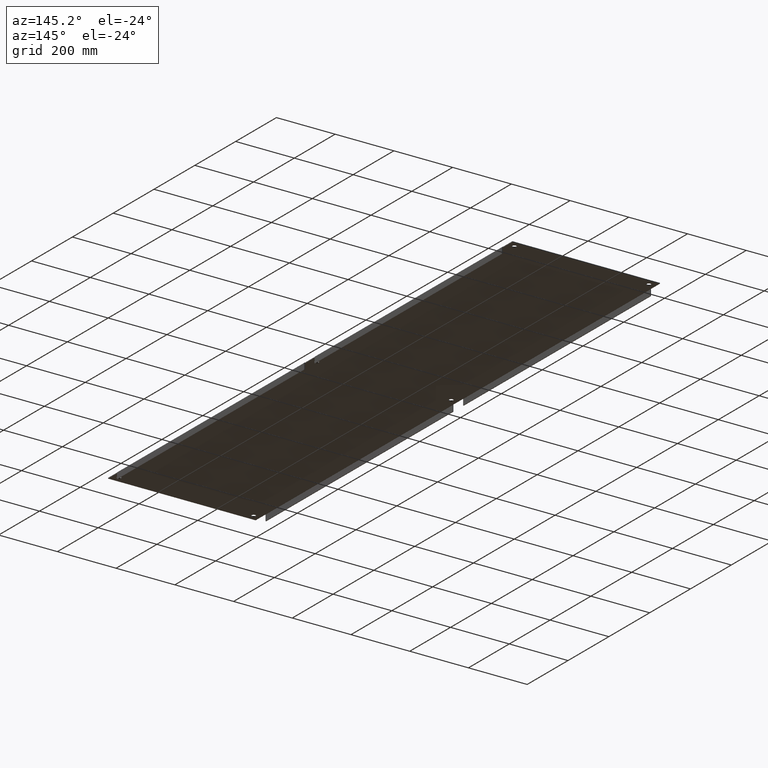
[diagram: clean part render]
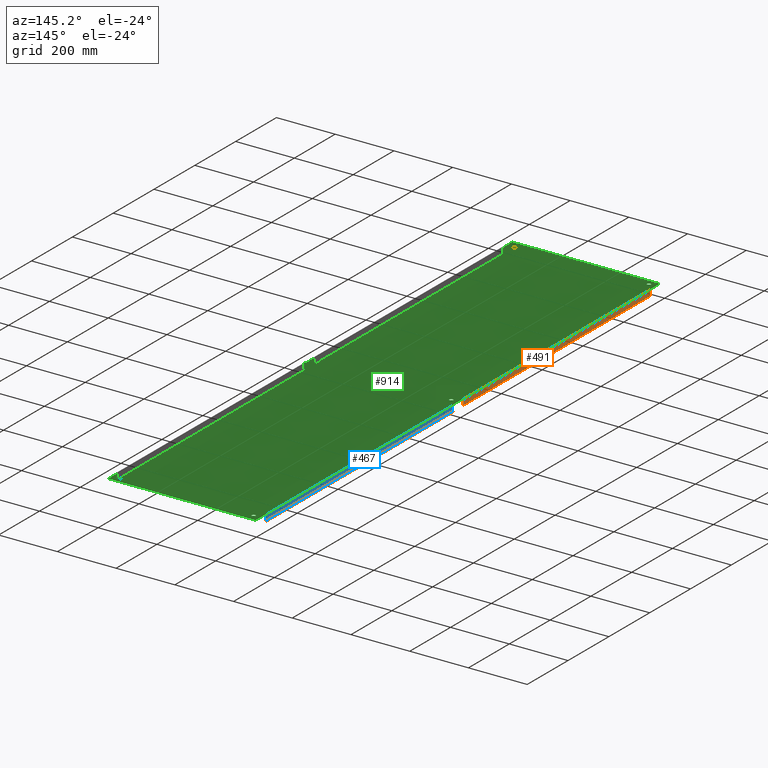
[diagram: same view with three faces highlighted in distinct colors, each labeled with its STEP entity id]
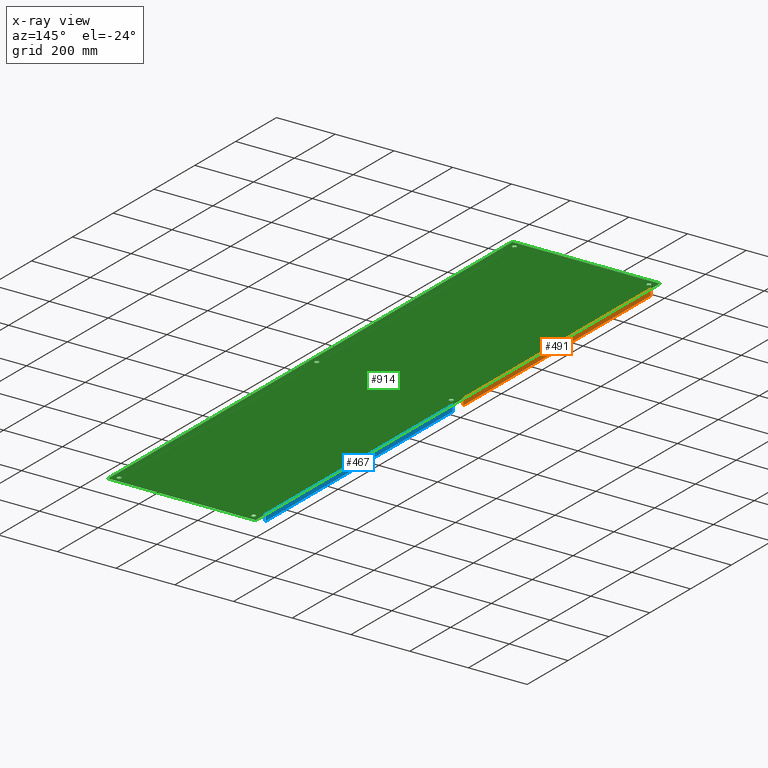
[diagram: x-ray of the same camera — body ghosted, the three highlighted faces saturated]
A machine part, auxiliary view with three faces highlighted in distinct colors.
The next image is the same camera in x-ray (body ghosted, the three faces saturated) — at least one of them is partly hidden behind the body in this view.
Their STEP definitions:

[orange] entity #491 — the highlighted planar face has unit normal (1, 0, 0).
#249=CARTESIAN_POINT('',(0.093749999999871,40.0,-0.015000000000209));
#250=VERTEX_POINT('',#249);
#283=CARTESIAN_POINT('',(0.093749999999988,40.000000000000007,-0.78125));
#284=VERTEX_POINT('',#283);
#291=CARTESIAN_POINT('',(0.093749999999988,40.0,-0.015000000000209));
#292=DIRECTION('',(0.0,0.0,-1.0));
#293=VECTOR('',#292,0.766249999999791);
#294=LINE('',#291,#293);
#295=EDGE_CURVE('',#250,#284,#294,.T.);
#418=CARTESIAN_POINT('',(0.093749999999999,76.125,-0.015000000000363));
#419=VERTEX_POINT('',#418);
#420=CARTESIAN_POINT('',(0.093749999999871,40.0,-0.015000000000209));
#421=DIRECTION('',(0.0,1.0,0.0));
#422=VECTOR('',#421,36.125);
#423=LINE('',#420,#422);
#424=EDGE_CURVE('',#250,#419,#423,.T.);
#468=CARTESIAN_POINT('',(0.093749999999999,1.875,-0.78125));
#469=DIRECTION('',(1.0,0.0,0.0));
#470=DIRECTION('',(0.0,0.0,-1.0));
#471=AXIS2_PLACEMENT_3D('',#468,#469,#470);
#472=PLANE('',#471);
#473=ORIENTED_EDGE('',*,*,#295,.T.);
#474=CARTESIAN_POINT('',(0.093749999999977,76.125000000000014,-0.78125));
#475=VERTEX_POINT('',#474);
#476=CARTESIAN_POINT('',(0.093749999999988,40.000000000000007,-0.78125));
#477=DIRECTION('',(0.0,1.0,0.0));
#478=VECTOR('',#477,36.125000000000007);
#479=LINE('',#476,#478);
#480=EDGE_CURVE('',#284,#475,#479,.T.);
#481=ORIENTED_EDGE('',*,*,#480,.T.);
#482=CARTESIAN_POINT('',(0.093749999999977,76.125000000000014,-0.78125));
#483=DIRECTION('',(0.0,0.0,1.0));
#484=VECTOR('',#483,0.76625);
#485=LINE('',#482,#484);
#486=EDGE_CURVE('',#475,#419,#485,.T.);
#487=ORIENTED_EDGE('',*,*,#486,.T.);
#488=ORIENTED_EDGE('',*,*,#424,.F.);
#489=EDGE_LOOP('',(#473,#481,#487,#488));
#490=FACE_OUTER_BOUND('',#489,.T.);
#491=ADVANCED_FACE('',(#490),#472,.T.);

[blue] entity #467 — the highlighted planar face has unit normal (1, 0, 0).
#305=CARTESIAN_POINT('',(0.093749999999879,37.999999999999993,-0.0150000000002));
#306=VERTEX_POINT('',#305);
#316=CARTESIAN_POINT('',(0.093749999999988,37.999999999999993,-0.78125));
#317=VERTEX_POINT('',#316);
#318=CARTESIAN_POINT('',(0.093749999999988,37.999999999999993,-0.78125));
#319=DIRECTION('',(0.0,0.0,1.0));
#320=VECTOR('',#319,0.7662499999998);
#321=LINE('',#318,#320);
#322=EDGE_CURVE('',#317,#306,#321,.T.);
#394=CARTESIAN_POINT('',(0.093750000000022,1.874999999999996,-0.015000000000046));
#395=VERTEX_POINT('',#394);
#403=CARTESIAN_POINT('',(0.093750000000022,1.875,-0.015000000000046));
#404=DIRECTION('',(0.0,1.0,0.0));
#405=VECTOR('',#404,36.124999999999993);
#406=LINE('',#403,#405);
#407=EDGE_CURVE('',#395,#306,#406,.T.);
#444=CARTESIAN_POINT('',(0.093749999999999,1.875,-0.78125));
#445=DIRECTION('',(1.0,0.0,0.0));
#446=DIRECTION('',(0.0,0.0,-1.0));
#447=AXIS2_PLACEMENT_3D('',#444,#445,#446);
#448=PLANE('',#447);
#449=ORIENTED_EDGE('',*,*,#322,.T.);
#450=ORIENTED_EDGE('',*,*,#407,.F.);
#451=CARTESIAN_POINT('',(0.093749999999999,1.875,-0.78125));
#452=VERTEX_POINT('',#451);
#453=CARTESIAN_POINT('',(0.093749999999999,1.875,-0.015));
#454=DIRECTION('',(0.0,0.0,-1.0));
#455=VECTOR('',#454,0.76625);
#456=LINE('',#453,#455);
#457=EDGE_CURVE('',#395,#452,#456,.T.);
#458=ORIENTED_EDGE('',*,*,#457,.T.);
#459=CARTESIAN_POINT('',(0.093749999999999,1.875,-0.78125));
#460=DIRECTION('',(0.0,1.0,0.0));
#461=VECTOR('',#460,36.124999999999993);
#462=LINE('',#459,#461);
#463=EDGE_CURVE('',#452,#317,#462,.T.);
#464=ORIENTED_EDGE('',*,*,#463,.T.);
#465=EDGE_LOOP('',(#449,#450,#458,#464));
#466=FACE_OUTER_BOUND('',#465,.T.);
#467=ADVANCED_FACE('',(#466),#448,.T.);

[green] entity #914 — the highlighted planar face has unit normal (0, 0, 1).
#90=CARTESIAN_POINT('',(19.297299999999954,39.0,0.0));
#91=VERTEX_POINT('',#90);
#92=CARTESIAN_POINT('',(19.016049999999954,39.0,0.0));
#93=DIRECTION('',(0.0,0.0,1.0));
#94=DIRECTION('',(1.0,0.0,0.0));
#95=AXIS2_PLACEMENT_3D('',#92,#93,#94);
#96=CIRCLE('',#95,0.28125);
#97=EDGE_CURVE('',#91,#91,#96,.T.);
#118=CARTESIAN_POINT('',(1.264999999999953,39.0,0.0));
#119=VERTEX_POINT('',#118);
#120=CARTESIAN_POINT('',(0.983749999999953,39.0,0.0));
#121=DIRECTION('',(0.0,0.0,1.0));
#122=DIRECTION('',(1.0,0.0,0.0));
#123=AXIS2_PLACEMENT_3D('',#120,#121,#122);
#124=CIRCLE('',#123,0.28125);
#125=EDGE_CURVE('',#119,#119,#124,.T.);
#146=CARTESIAN_POINT('',(19.297299999999954,0.874999999999999,0.0));
#147=VERTEX_POINT('',#146);
#148=CARTESIAN_POINT('',(19.016049999999954,0.874999999999999,0.0));
#149=DIRECTION('',(0.0,0.0,1.0));
#150=DIRECTION('',(1.0,0.0,0.0));
#151=AXIS2_PLACEMENT_3D('',#148,#149,#150);
#152=CIRCLE('',#151,0.28125);
#153=EDGE_CURVE('',#147,#147,#152,.T.);
#174=CARTESIAN_POINT('',(1.264999999999952,0.874999999999999,0.0));
#175=VERTEX_POINT('',#174);
#176=CARTESIAN_POINT('',(0.983749999999953,0.874999999999999,0.0));
#177=DIRECTION('',(0.0,0.0,1.0));
#178=DIRECTION('',(1.0,0.0,0.0));
#179=AXIS2_PLACEMENT_3D('',#176,#177,#178);
#180=CIRCLE('',#179,0.28125);
#181=EDGE_CURVE('',#175,#175,#180,.T.);
#202=CARTESIAN_POINT('',(19.297299999999954,77.125000000000014,0.0));
#203=VERTEX_POINT('',#202);
#204=CARTESIAN_POINT('',(19.016049999999954,77.125000000000014,0.0));
#205=DIRECTION('',(0.0,0.0,1.0));
#206=DIRECTION('',(1.0,0.0,0.0));
#207=AXIS2_PLACEMENT_3D('',#204,#205,#206);
#208=CIRCLE('',#207,0.28125);
#209=EDGE_CURVE('',#203,#203,#208,.T.);
#230=CARTESIAN_POINT('',(1.264999999999953,77.125000000000014,0.0));
#231=VERTEX_POINT('',#230);
#232=CARTESIAN_POINT('',(0.983749999999953,77.125000000000014,0.0));
#233=DIRECTION('',(0.0,0.0,1.0));
#234=DIRECTION('',(1.0,0.0,0.0));
#235=AXIS2_PLACEMENT_3D('',#232,#233,#234);
#236=CIRCLE('',#235,0.28125);
#237=EDGE_CURVE('',#231,#231,#236,.T.);
#247=CARTESIAN_POINT('',(0.108749999999954,40.000000000000007,0.0));
#248=VERTEX_POINT('',#247);
#307=CARTESIAN_POINT('',(0.108749999999954,38.0,0.0));
#308=VERTEX_POINT('',#307);
#363=CARTESIAN_POINT('',(0.108749999999966,38.0,0.0));
#364=DIRECTION('',(0.0,1.0,0.0));
#365=VECTOR('',#364,2.0);
#366=LINE('',#363,#365);
#367=EDGE_CURVE('',#308,#248,#366,.T.);
#386=CARTESIAN_POINT('',(0.108749999999976,1.874999999999999,0.0));
#387=VERTEX_POINT('',#386);
#388=CARTESIAN_POINT('',(0.108749999999977,1.874999999999993,0.0));
#389=DIRECTION('',(0.0,1.0,0.0));
#390=VECTOR('',#389,36.125000000000007);
#391=LINE('',#388,#390);
#392=EDGE_CURVE('',#387,#308,#391,.T.);
#426=CARTESIAN_POINT('',(0.108749999999953,76.125,0.0));
#427=VERTEX_POINT('',#426);
#435=CARTESIAN_POINT('',(0.108749999999965,40.0,0.0));
#436=DIRECTION('',(0.0,1.0,0.0));
#437=VECTOR('',#436,36.125);
#438=LINE('',#435,#437);
#439=EDGE_CURVE('',#248,#427,#438,.T.);
#594=CARTESIAN_POINT('',(19.89105,40.000000000000007,0.0));
#595=VERTEX_POINT('',#594);
#596=CARTESIAN_POINT('',(19.89105,38.0,0.0));
#597=VERTEX_POINT('',#596);
#598=CARTESIAN_POINT('',(19.89105,40.0,0.0));
#599=DIRECTION('',(0.0,-1.0,0.0));
#600=VECTOR('',#599,2.0);
#601=LINE('',#598,#600);
#602=EDGE_CURVE('',#595,#597,#601,.T.);
#634=CARTESIAN_POINT('',(19.89125000000001,38.0,0.0));
#635=VERTEX_POINT('',#634);
#636=CARTESIAN_POINT('',(19.89105,38.0,0.0));
#637=DIRECTION('',(1.0,0.0,0.0));
#638=VECTOR('',#637,0.00020000000001);
#639=LINE('',#636,#638);
#640=EDGE_CURVE('',#597,#635,#639,.T.);
#699=CARTESIAN_POINT('',(19.89125000000001,40.000000000000007,0.0));
#700=VERTEX_POINT('',#699);
#701=CARTESIAN_POINT('',(19.89125000000001,40.000000000000007,0.0));
#702=DIRECTION('',(-1.0,0.0,0.0));
#703=VECTOR('',#702,0.00020000000001);
#704=LINE('',#701,#703);
#705=EDGE_CURVE('',#700,#595,#704,.T.);
#759=CARTESIAN_POINT('',(9.999999999999989,39.0,0.0));
#760=DIRECTION('',(0.0,0.0,1.0));
#761=DIRECTION('',(1.0,0.0,0.0));
#762=AXIS2_PLACEMENT_3D('',#759,#760,#761);
#763=PLANE('',#762);
#764=ORIENTED_EDGE('',*,*,#705,.T.);
#765=ORIENTED_EDGE('',*,*,#602,.T.);
#766=ORIENTED_EDGE('',*,*,#640,.T.);
#767=CARTESIAN_POINT('',(19.891250000000014,1.875000000000018,0.0));
#768=VERTEX_POINT('',#767);
#769=CARTESIAN_POINT('',(19.89125000000001,38.0,0.0));
#770=DIRECTION('',(0.0,-1.0,0.0));
#771=VECTOR('',#770,36.124999999999986);
#772=LINE('',#769,#771);
#773=EDGE_CURVE('',#635,#768,#772,.T.);
#774=ORIENTED_EDGE('',*,*,#773,.T.);
#775=CARTESIAN_POINT('',(19.891050000000014,1.875000000000018,1.092739E-017));
#776=VERTEX_POINT('',#775);
#777=CARTESIAN_POINT('',(19.891250000000017,1.875000000000018,0.0));
#778=DIRECTION('',(-1.0,0.0,0.0));
#779=VECTOR('',#778,0.000200000000003);
#780=LINE('',#777,#779);
#781=EDGE_CURVE('',#768,#776,#780,.T.);
#782=ORIENTED_EDGE('',*,*,#781,.T.);
#783=CARTESIAN_POINT('',(19.891050000000014,1.874800000000018,1.092739E-017));
#784=VERTEX_POINT('',#783);
#785=CARTESIAN_POINT('',(19.891050000000014,1.875000000000018,0.0));
#786=DIRECTION('',(0.0,-1.0,0.0));
#787=VECTOR('',#786,0.000200000000003);
#788=LINE('',#785,#787);
#789=EDGE_CURVE('',#776,#784,#788,.T.);
#790=ORIENTED_EDGE('',*,*,#789,.T.);
#791=CARTESIAN_POINT('',(19.891250000000014,1.874800000000019,0.0));
#792=VERTEX_POINT('',#791);
#793=CARTESIAN_POINT('',(19.891050000000014,1.874800000000019,0.0));
#794=DIRECTION('',(1.0,0.0,0.0));
#795=VECTOR('',#794,0.000200000000003);
#796=LINE('',#793,#795);
#797=EDGE_CURVE('',#784,#792,#796,.T.);
#798=ORIENTED_EDGE('',*,*,#797,.T.);
#799=CARTESIAN_POINT('',(19.891250000000014,-1.331803E-017,1.092739E-017));
#800=VERTEX_POINT('',#799);
#801=CARTESIAN_POINT('',(19.891250000000014,1.874800000000018,0.0));
#802=DIRECTION('',(0.0,-1.0,0.0));
#803=VECTOR('',#802,1.874800000000018);
#804=LINE('',#801,#803);
#805=EDGE_CURVE('',#792,#800,#804,.T.);
#806=ORIENTED_EDGE('',*,*,#805,.T.);
#807=CARTESIAN_POINT('',(0.108949999999985,0.0,1.092739E-017));
#808=VERTEX_POINT('',#807);
#809=CARTESIAN_POINT('',(0.108949999999985,0.0,0.0));
#810=DIRECTION('',(1.0,0.0,0.0));
#811=VECTOR('',#810,19.782300000000028);
#812=LINE('',#809,#811);
#813=EDGE_CURVE('',#808,#800,#812,.T.);
#814=ORIENTED_EDGE('',*,*,#813,.F.);
#815=CARTESIAN_POINT('',(0.108949999999976,1.874999999999999,1.092739E-017));
#816=VERTEX_POINT('',#815);
#817=CARTESIAN_POINT('',(0.108949999999984,0.0,0.0));
#818=DIRECTION('',(0.0,1.0,0.0));
#819=VECTOR('',#818,1.875);
#820=LINE('',#817,#819);
#821=EDGE_CURVE('',#808,#816,#820,.T.);
#822=ORIENTED_EDGE('',*,*,#821,.T.);
#823=CARTESIAN_POINT('',(0.108949999999976,1.875000000000001,0.0));
#824=DIRECTION('',(-1.0,0.0,0.0));
#825=VECTOR('',#824,0.0002);
#826=LINE('',#823,#825);
#827=EDGE_CURVE('',#816,#387,#826,.T.);
#828=ORIENTED_EDGE('',*,*,#827,.T.);
#829=ORIENTED_EDGE('',*,*,#392,.T.);
#830=ORIENTED_EDGE('',*,*,#367,.T.);
#831=ORIENTED_EDGE('',*,*,#439,.T.);
#832=CARTESIAN_POINT('',(0.108949999999953,76.125,1.092739E-017));
#833=VERTEX_POINT('',#832);
#834=CARTESIAN_POINT('',(0.108749999999953,76.125,0.0));
#835=DIRECTION('',(1.0,0.0,0.0));
#836=VECTOR('',#835,0.0002);
#837=LINE('',#834,#836);
#838=EDGE_CURVE('',#427,#833,#837,.T.);
#839=ORIENTED_EDGE('',*,*,#838,.T.);
#840=CARTESIAN_POINT('',(0.108949999999953,76.125199999999992,1.092739E-017));
#841=VERTEX_POINT('',#840);
#842=CARTESIAN_POINT('',(0.108949999999954,76.125,0.0));
#843=DIRECTION('',(0.0,1.0,0.0));
#844=VECTOR('',#843,0.000199999999992);
#845=LINE('',#842,#844);
#846=EDGE_CURVE('',#833,#841,#845,.T.);
#847=ORIENTED_EDGE('',*,*,#846,.T.);
#848=CARTESIAN_POINT('',(0.108749999999953,76.125199999999992,0.0));
#849=VERTEX_POINT('',#848);
#850=CARTESIAN_POINT('',(0.108949999999953,76.125199999999992,0.0));
#851=DIRECTION('',(-1.0,0.0,0.0));
#852=VECTOR('',#851,0.0002);
#853=LINE('',#850,#852);
#854=EDGE_CURVE('',#841,#849,#853,.T.);
#855=ORIENTED_EDGE('',*,*,#854,.T.);
#856=CARTESIAN_POINT('',(0.108749999999953,78.0,2.185478E-017));
#857=VERTEX_POINT('',#856);
#858=CARTESIAN_POINT('',(0.108749999999954,76.125199999999992,0.0));
#859=DIRECTION('',(0.0,1.0,0.0));
#860=VECTOR('',#859,1.874800000000008);
#861=LINE('',#858,#860);
#862=EDGE_CURVE('',#849,#857,#861,.T.);
#863=ORIENTED_EDGE('',*,*,#862,.T.);
#864=CARTESIAN_POINT('',(19.89105,78.0,1.092739E-017));
#865=VERTEX_POINT('',#864);
#866=CARTESIAN_POINT('',(19.89105,78.0,0.0));
#867=DIRECTION('',(-1.0,0.0,0.0));
#868=VECTOR('',#867,19.782300000000046);
#869=LINE('',#866,#868);
#870=EDGE_CURVE('',#865,#857,#869,.T.);
#871=ORIENTED_EDGE('',*,*,#870,.F.);
#872=CARTESIAN_POINT('',(19.89105,76.125000000000014,1.092739E-017));
#873=VERTEX_POINT('',#872);
#874=CARTESIAN_POINT('',(19.89105,78.0,0.0));
#875=DIRECTION('',(0.0,-1.0,0.0));
#876=VECTOR('',#875,1.874999999999986);
#877=LINE('',#874,#876);
#878=EDGE_CURVE('',#865,#873,#877,.T.);
#879=ORIENTED_EDGE('',*,*,#878,.T.);
#880=CARTESIAN_POINT('',(19.891250000000003,76.125000000000014,0.0));
#881=VERTEX_POINT('',#880);
#882=CARTESIAN_POINT('',(19.89105,76.125000000000014,0.0));
#883=DIRECTION('',(1.0,0.0,0.0));
#884=VECTOR('',#883,0.0002);
#885=LINE('',#882,#884);
#886=EDGE_CURVE('',#873,#881,#885,.T.);
#887=ORIENTED_EDGE('',*,*,#886,.T.);
#888=CARTESIAN_POINT('',(19.891250000000003,76.125,0.0));
#889=DIRECTION('',(0.0,-1.0,0.0));
#890=VECTOR('',#889,36.125);
#891=LINE('',#888,#890);
#892=EDGE_CURVE('',#881,#700,#891,.T.);
#893=ORIENTED_EDGE('',*,*,#892,.T.);
#894=EDGE_LOOP('',(#764,#765,#766,#774,#782,#790,#798,#806,#814,#822,#828,#829,#830,#831,#839,#847,#855,#863,#871,#879,#887,#893));
#895=FACE_OUTER_BOUND('',#894,.T.);
#896=ORIENTED_EDGE('',*,*,#97,.T.);
#897=EDGE_LOOP('',(#896));
#898=FACE_BOUND('',#897,.T.);
#899=ORIENTED_EDGE('',*,*,#125,.T.);
#900=EDGE_LOOP('',(#899));
#901=FACE_BOUND('',#900,.T.);
#902=ORIENTED_EDGE('',*,*,#153,.T.);
#903=EDGE_LOOP('',(#902));
#904=FACE_BOUND('',#903,.T.);
#905=ORIENTED_EDGE('',*,*,#181,.T.);
#906=EDGE_LOOP('',(#905));
#907=FACE_BOUND('',#906,.T.);
#908=ORIENTED_EDGE('',*,*,#209,.T.);
#909=EDGE_LOOP('',(#908));
#910=FACE_BOUND('',#909,.T.);
#911=ORIENTED_EDGE('',*,*,#237,.T.);
#912=EDGE_LOOP('',(#911));
#913=FACE_BOUND('',#912,.T.);
#914=ADVANCED_FACE('',(#895,#898,#901,#904,#907,#910,#913),#763,.F.);